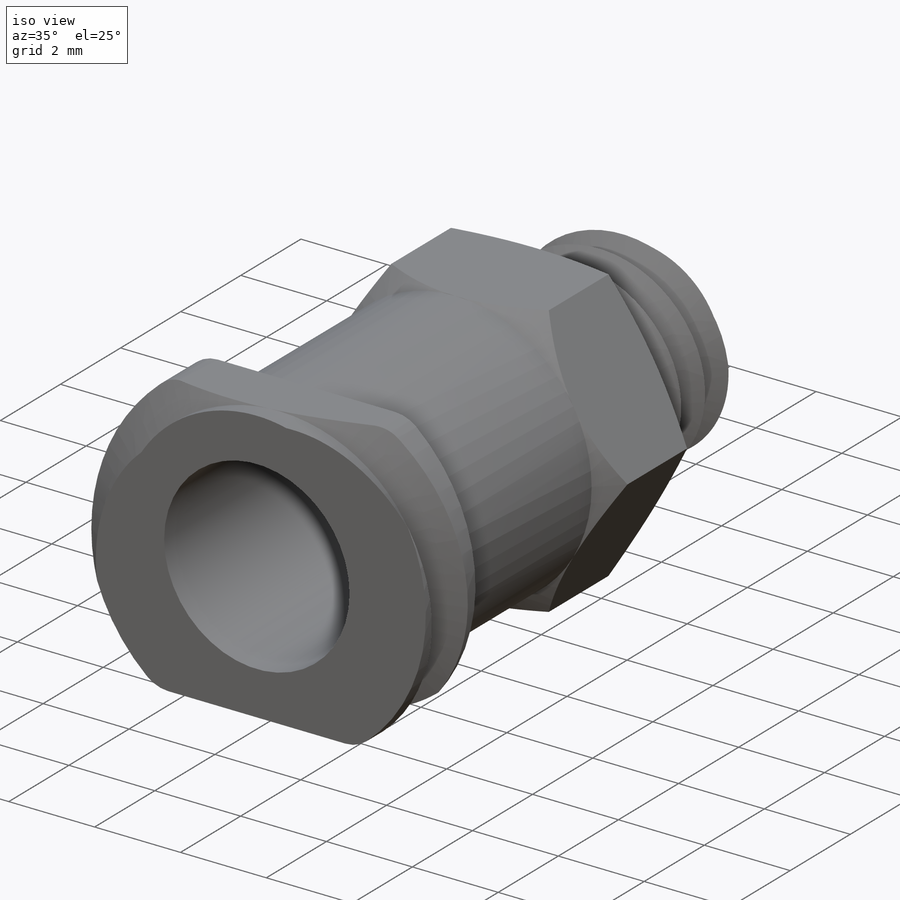
[diagram: iso view]
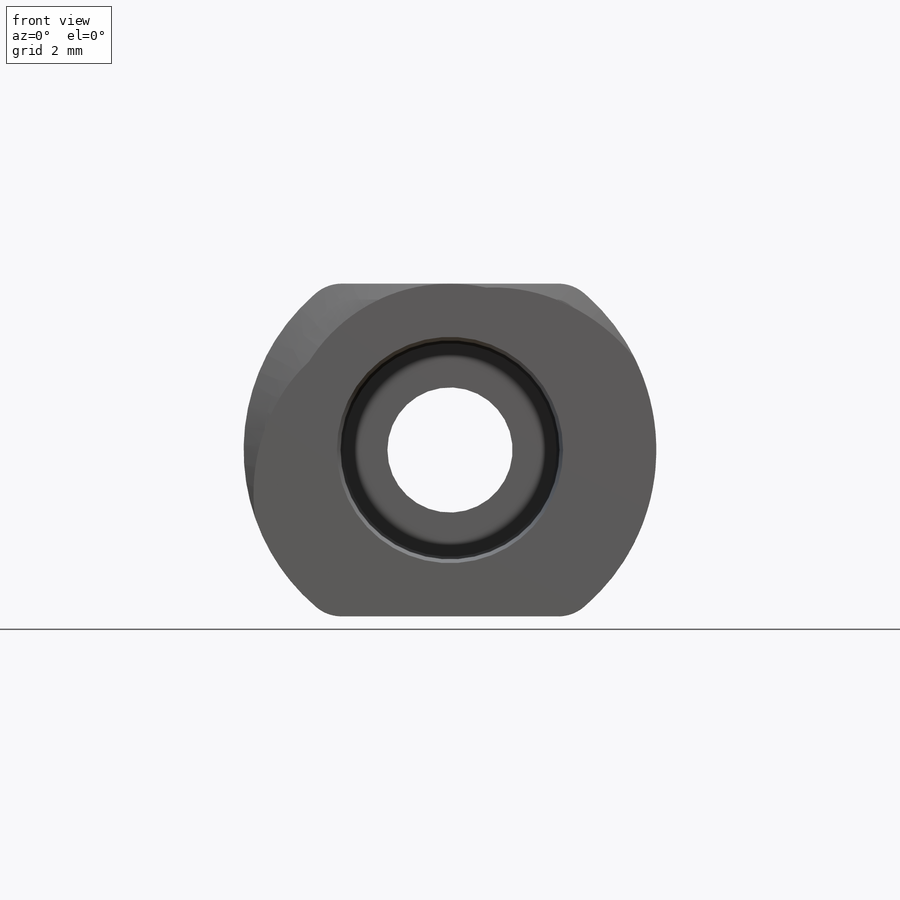
[diagram: front view]
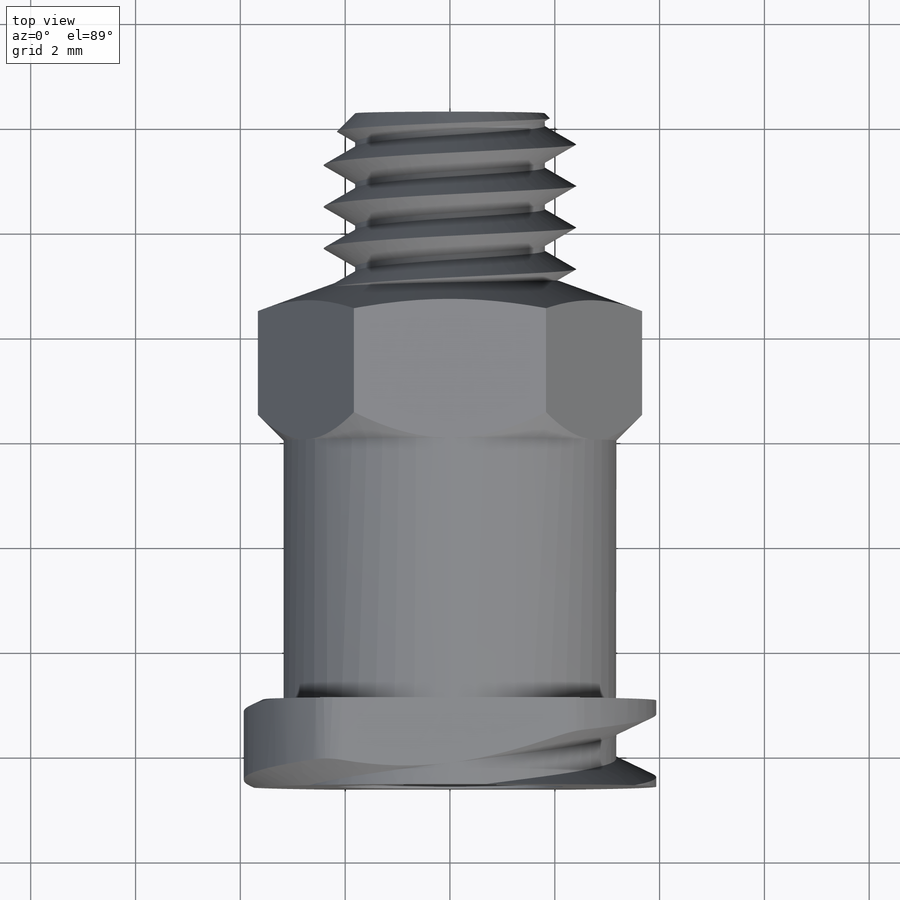
[diagram: top view]
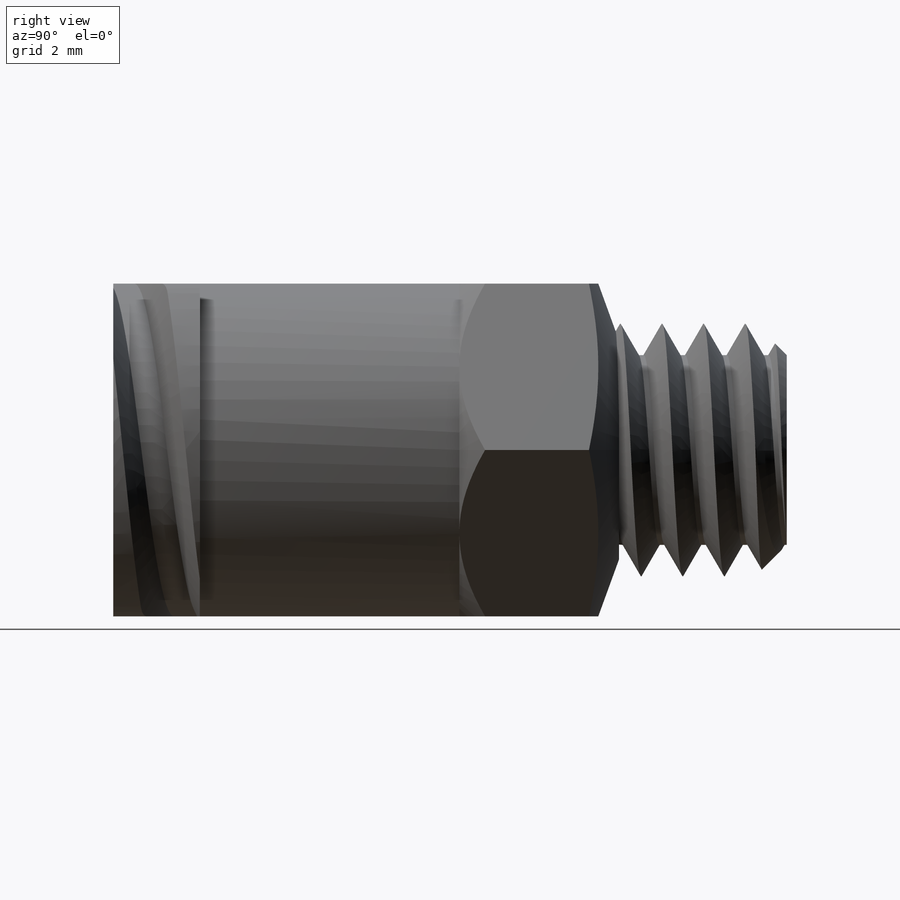
[diagram: right view]
SOLIDWORKS PART (.sldprt)
format: sldprt  version: not decoded by parser v0  size: 986,624 bytes
history: native  units: mm
features: sketch x19, cut_extrude x6, extrude x5, plane x2, helix x2, sweep x2, boolean_combine x2, material x1, fillet x1, cut_revolve x1 (+14 scaffold rows collapsed)
feature tree (55):
  scaffold x14  (default folders/planes/origin — collapsed)
  material  "Material <not specified>"
  sketch  "Sketch20"  dims[D1=2.54mm D2=6.35mm]
  extrude  "Boss-Extrude1"  Depth=3.048mm
  sketch  "Sketch33"  dims[OAL=12.8524mm D1=6.604mm]
  sketch  "Sketch21"  dims[D1=0.0mm]
  extrude  "Boss-Extrude2"  [1 undecoded]
  sketch  "Sketch23"  dims[D1=6.35mm]
  extrude  "Boss-Extrude3"  [1 undecoded]
  plane  "Plane1"  Offset=0.762mm
  sketch  "Sketch24"  dims[D1=4.318mm]
  cut_extrude  "Cut-Extrude1"  [1 undecoded]
  sketch  "Sketch26"  dims[D1=7.874mm]
  extrude  "Boss-Extrude4"  Depth=1.651mm
  plane  "Plane2"  Offset=0.762mm
  sketch  "Sketch27"
  helix  "Helix/Spiral1"  Pitch=6.875mm
  sketch  "Sketch28"  dims[c1.D1=~0.580655mm c2.D1=25.0deg c2.D2=1.2mm]
  sweep  "Cut-Sweep1"
  sketch  "Sketch29"  dims[D1=~15.990455mm]
  cut_extrude  "Cut-Extrude2"  Depth=2.54mm
  sketch  "Sketch30"  dims[D1=15.875mm]
  cut_extrude  "Cut-Extrude3"  Depth=2.54mm
  fillet  "Fillet1"  Radius=0.762mm
  boolean_combine  "Combine3"
  sketch  "Sketch31"  dims[Thread Boss OD=6.35mm]
  sketch  "Sketch32"  dims[D1=12.8524mm]
  sketch  "Sketch34"  dims[c1.D1=~1.255424mm c2.D1=~111.262498deg c3.D1=~3.226233mm c4.D1=10.0deg c5.D1=~2.901976mm c6.D1=70.0deg c6.D2=0.254mm]
  cut_revolve  "Cut-Revolve2"  Angle=360deg
  sketch  "Sketch35"
  cut_extrude  "Cut-Extrude4"  Depth=2.54mm
  sketch  "Sketch36"  dims[D1=4.826mm]
  extrude  "Boss-Extrude5"  Depth=2.54mm
  sketch  "Sketch37"  dims[D1=0.0mm]
  helix  "Helix/Spiral2"  Pitch=5.953125mm
  sketch  "Sketch38"  dims[Pitch=~0.907143mm D3=60.0deg D1=~0.099219mm D2=~0.79375mm]
  sweep  "Cut-Sweep2"
  sketch  "Sketch39"  dims[D1=3.6195mm]
  cut_extrude  "Cut-Extrude5"  Depth=2.54mm
  boolean_combine  "Combine4"
  sketch  "Sketch40"  dims[D1=2.3876mm]
  cut_extrude  "Cut-Extrude6"  Depth=12.954mm
decode coverage: 29 of 38 modeling features carry decoded parameters
note: ~ marks probable driven/reference dimensions
note: 3 parameter values undecoded
summary: no parameter record found for 3 features
note: suppression state not decoded; provenance and decode notes live in map.json
